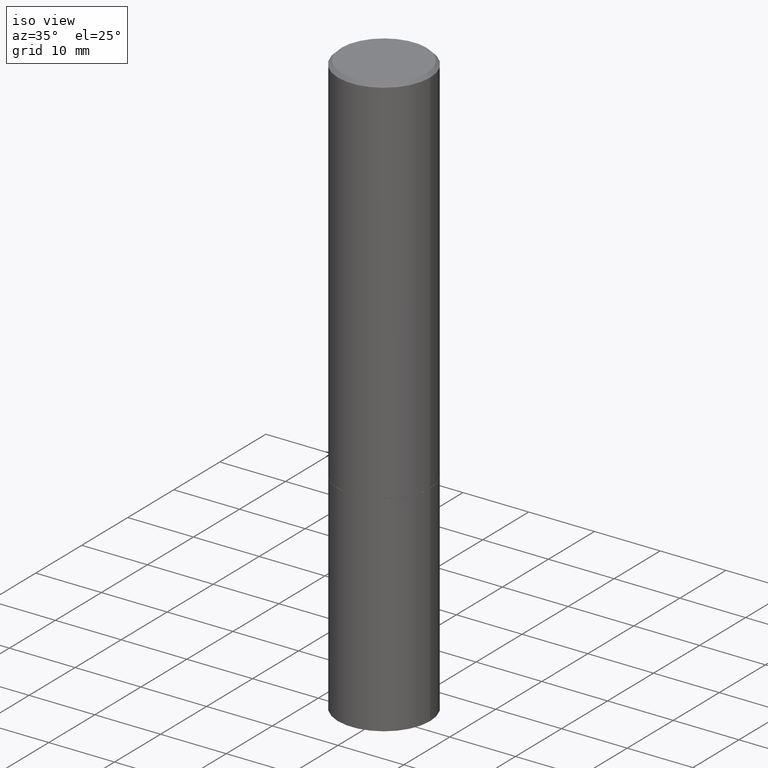
[diagram: clean part render]
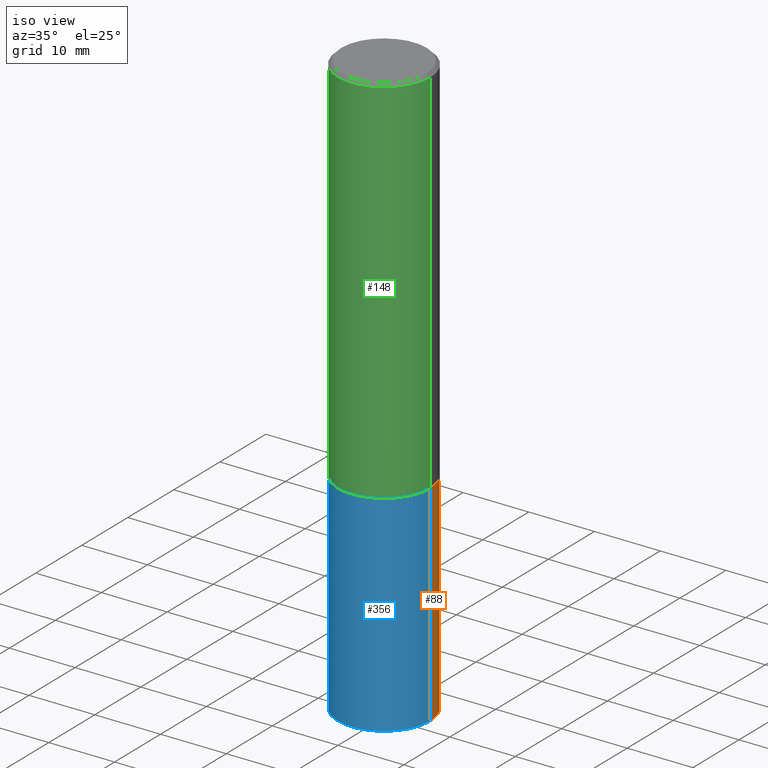
[diagram: same view with three faces highlighted in distinct colors, each labeled with its STEP entity id]
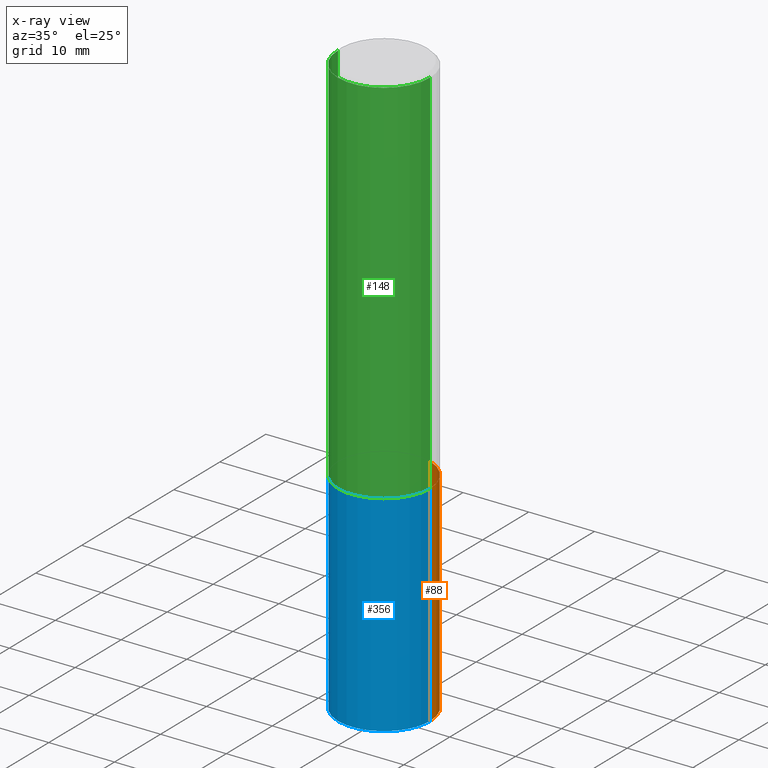
[diagram: x-ray of the same camera — body ghosted, the three highlighted faces saturated]
A machine part, iso view with three faces highlighted in distinct colors.
The next image is the same camera in x-ray (body ghosted, the three faces saturated) — at least one of them is partly hidden behind the body in this view.
Their STEP definitions:

[orange] entity #88 — the highlighted cylindrical surface (partial cylindrical patch) has radius 7.0002 mm, axis along (-0, 0, 1).
#35 = CARTESIAN_POINT ( 'NONE',  ( -0.2756000000000000116, -8.076261588080363510E-15, -2.244099999999999540 ) ) ;
#48 = CARTESIAN_POINT ( 'NONE',  ( -0.2756000000000000116, 1.958255779754836195E-15, -1.355658510874252007E-29 ) ) ;
#64 = DIRECTION ( 'NONE',  ( 1.000000000000000000, -6.982962677686267499E-15, 4.876176775795935793E-29 ) ) ;
#72 = LINE ( 'NONE', #187, #354 ) ;
#79 = CARTESIAN_POINT ( 'NONE',  ( 0.2756000000000000116, -9.759737786468235716E-15, -2.244099999999999540 ) ) ;
#88 = ADVANCED_FACE ( 'NONE', ( #126 ), #300, .T. ) ;
#97 = ORIENTED_EDGE ( 'NONE', *, *, #311, .F. ) ;
#119 = DIRECTION ( 'NONE',  ( -2.445468806185136877E-29, 3.491481338843145188E-15, 1.000000000000000000 ) ) ;
#120 = ORIENTED_EDGE ( 'NONE', *, *, #289, .T. ) ;
#123 = CARTESIAN_POINT ( 'NONE',  ( 8.568678149992099474E-29, -1.223380146317249786E-14, -3.503899999999999793 ) ) ;
#126 = FACE_OUTER_BOUND ( 'NONE', #178, .T. ) ;
#141 = VERTEX_POINT ( 'NONE', #234 ) ;
#147 = DIRECTION ( 'NONE',  ( -2.445468806185136597E-29, 3.491481338843145583E-15, 1.000000000000000000 ) ) ;
#150 = CARTESIAN_POINT ( 'NONE',  ( 5.487876547960063631E-29, -7.835233272497900762E-15, -2.244099999999999540 ) ) ;
#151 = DIRECTION ( 'NONE',  ( 1.000000000000000000, -6.982962677686265922E-15, 0.000000000000000000 ) ) ;
#164 = AXIS2_PLACEMENT_3D ( 'NONE', #150, #211, #278 ) ;
#165 = EDGE_CURVE ( 'NONE', #141, #361, #314, .T. ) ;
#166 = VERTEX_POINT ( 'NONE', #35 ) ;
#178 = EDGE_LOOP ( 'NONE', ( #201, #120, #97, #365 ) ) ;
#187 = CARTESIAN_POINT ( 'NONE',  ( 0.2756000000000000116, -1.924504513970335348E-15, 1.343874319409359987E-29 ) ) ;
#190 = CIRCLE ( 'NONE', #164, 0.2756000000000000116 ) ;
#195 = VERTEX_POINT ( 'NONE', #79 ) ;
#201 = ORIENTED_EDGE ( 'NONE', *, *, #165, .T. ) ;
#211 = DIRECTION ( 'NONE',  ( -2.445468806185136597E-29, 3.491481338843145583E-15, 1.000000000000000000 ) ) ;
#234 = CARTESIAN_POINT ( 'NONE',  ( 0.2756000000000000116, -1.415830597714283281E-14, -3.503899999999999793 ) ) ;
#243 = AXIS2_PLACEMENT_3D ( 'NONE', #320, #147, #64 ) ;
#249 = VECTOR ( 'NONE', #119, 39.37007874015748143 ) ;
#263 = EDGE_CURVE ( 'NONE', #141, #195, #72, .T. ) ;
#278 = DIRECTION ( 'NONE',  ( 1.000000000000000000, -6.982962677686265922E-15, 0.000000000000000000 ) ) ;
#283 = AXIS2_PLACEMENT_3D ( 'NONE', #123, #295, #151 ) ;
#289 = EDGE_CURVE ( 'NONE', #361, #166, #310, .T. ) ;
#295 = DIRECTION ( 'NONE',  ( -2.445468806185136597E-29, 3.491481338843145583E-15, 1.000000000000000000 ) ) ;
#300 = CYLINDRICAL_SURFACE ( 'NONE', #243, 0.2756000000000000116 ) ;
#301 = DIRECTION ( 'NONE',  ( -2.445468806185136877E-29, 3.491481338843145188E-15, 1.000000000000000000 ) ) ;
#310 = LINE ( 'NONE', #48, #249 ) ;
#311 = EDGE_CURVE ( 'NONE', #195, #166, #190, .T. ) ;
#314 = CIRCLE ( 'NONE', #283, 0.2756000000000000116 ) ;
#320 = CARTESIAN_POINT ( 'NONE',  ( 0.000000000000000000, 0.000000000000000000, 0.000000000000000000 ) ) ;
#351 = CARTESIAN_POINT ( 'NONE',  ( -0.2756000000000000116, -8.076261588080363510E-15, -3.503899999999999793 ) ) ;
#354 = VECTOR ( 'NONE', #301, 39.37007874015748143 ) ;
#361 = VERTEX_POINT ( 'NONE', #351 ) ;
#365 = ORIENTED_EDGE ( 'NONE', *, *, #263, .F. ) ;

[blue] entity #356 — the highlighted cylindrical surface (partial cylindrical patch) has radius 7.0002 mm, axis along (-0, 0, 1).
#16 = DIRECTION ( 'NONE',  ( -2.445468806185136597E-29, 3.491481338843145583E-15, 1.000000000000000000 ) ) ;
#31 = ORIENTED_EDGE ( 'NONE', *, *, #289, .F. ) ;
#35 = CARTESIAN_POINT ( 'NONE',  ( -0.2756000000000000116, -8.076261588080363510E-15, -2.244099999999999540 ) ) ;
#36 = AXIS2_PLACEMENT_3D ( 'NONE', #288, #144, #214 ) ;
#39 = FACE_OUTER_BOUND ( 'NONE', #261, .T. ) ;
#40 = CIRCLE ( 'NONE', #36, 0.2756000000000000116 ) ;
#44 = DIRECTION ( 'NONE',  ( 1.000000000000000000, -6.982962677686265922E-15, 0.000000000000000000 ) ) ;
#48 = CARTESIAN_POINT ( 'NONE',  ( -0.2756000000000000116, 1.958255779754836195E-15, -1.355658510874252007E-29 ) ) ;
#62 = AXIS2_PLACEMENT_3D ( 'NONE', #69, #328, #306 ) ;
#69 = CARTESIAN_POINT ( 'NONE',  ( 0.000000000000000000, 0.000000000000000000, 0.000000000000000000 ) ) ;
#72 = LINE ( 'NONE', #187, #354 ) ;
#79 = CARTESIAN_POINT ( 'NONE',  ( 0.2756000000000000116, -9.759737786468235716E-15, -2.244099999999999540 ) ) ;
#92 = ORIENTED_EDGE ( 'NONE', *, *, #305, .T. ) ;
#119 = DIRECTION ( 'NONE',  ( -2.445468806185136877E-29, 3.491481338843145188E-15, 1.000000000000000000 ) ) ;
#141 = VERTEX_POINT ( 'NONE', #234 ) ;
#143 = ORIENTED_EDGE ( 'NONE', *, *, #279, .F. ) ;
#144 = DIRECTION ( 'NONE',  ( -2.445468806185136597E-29, 3.491481338843145583E-15, 1.000000000000000000 ) ) ;
#159 = CYLINDRICAL_SURFACE ( 'NONE', #62, 0.2756000000000000116 ) ;
#166 = VERTEX_POINT ( 'NONE', #35 ) ;
#187 = CARTESIAN_POINT ( 'NONE',  ( 0.2756000000000000116, -1.924504513970335348E-15, 1.343874319409359987E-29 ) ) ;
#194 = CARTESIAN_POINT ( 'NONE',  ( 5.487876547960063631E-29, -7.835233272497900762E-15, -2.244099999999999540 ) ) ;
#195 = VERTEX_POINT ( 'NONE', #79 ) ;
#214 = DIRECTION ( 'NONE',  ( 1.000000000000000000, -6.982962677686265922E-15, 0.000000000000000000 ) ) ;
#234 = CARTESIAN_POINT ( 'NONE',  ( 0.2756000000000000116, -1.415830597714283281E-14, -3.503899999999999793 ) ) ;
#249 = VECTOR ( 'NONE', #119, 39.37007874015748143 ) ;
#252 = ORIENTED_EDGE ( 'NONE', *, *, #263, .T. ) ;
#261 = EDGE_LOOP ( 'NONE', ( #31, #92, #252, #143 ) ) ;
#263 = EDGE_CURVE ( 'NONE', #141, #195, #72, .T. ) ;
#279 = EDGE_CURVE ( 'NONE', #166, #195, #297, .T. ) ;
#288 = CARTESIAN_POINT ( 'NONE',  ( 8.568678149992099474E-29, -1.223380146317249786E-14, -3.503899999999999793 ) ) ;
#289 = EDGE_CURVE ( 'NONE', #361, #166, #310, .T. ) ;
#297 = CIRCLE ( 'NONE', #342, 0.2756000000000000116 ) ;
#301 = DIRECTION ( 'NONE',  ( -2.445468806185136877E-29, 3.491481338843145188E-15, 1.000000000000000000 ) ) ;
#305 = EDGE_CURVE ( 'NONE', #361, #141, #40, .T. ) ;
#306 = DIRECTION ( 'NONE',  ( 1.000000000000000000, -6.982962677686267499E-15, 4.876176775795935793E-29 ) ) ;
#310 = LINE ( 'NONE', #48, #249 ) ;
#328 = DIRECTION ( 'NONE',  ( -2.445468806185136597E-29, 3.491481338843145583E-15, 1.000000000000000000 ) ) ;
#342 = AXIS2_PLACEMENT_3D ( 'NONE', #194, #16, #44 ) ;
#351 = CARTESIAN_POINT ( 'NONE',  ( -0.2756000000000000116, -8.076261588080363510E-15, -3.503899999999999793 ) ) ;
#354 = VECTOR ( 'NONE', #301, 39.37007874015748143 ) ;
#356 = ADVANCED_FACE ( 'NONE', ( #39 ), #159, .T. ) ;
#361 = VERTEX_POINT ( 'NONE', #351 ) ;

[green] entity #148 — the highlighted cylindrical surface (partial cylindrical patch) has radius 7.0002 mm, axis along (-0, 0, 1).
#1 = AXIS2_PLACEMENT_3D ( 'NONE', #161, #223, #277 ) ;
#11 = DIRECTION ( 'NONE',  ( -2.445468806185136597E-29, 3.491481338843145583E-15, 1.000000000000000000 ) ) ;
#49 = VERTEX_POINT ( 'NONE', #345 ) ;
#55 = VECTOR ( 'NONE', #350, 39.37007874015748143 ) ;
#65 = DIRECTION ( 'NONE',  ( -2.445468806185136597E-29, 3.491481338843145583E-15, 1.000000000000000000 ) ) ;
#66 = FACE_OUTER_BOUND ( 'NONE', #154, .T. ) ;
#91 = CIRCLE ( 'NONE', #1, 0.2756000000000000671 ) ;
#94 = CYLINDRICAL_SURFACE ( 'NONE', #95, 0.2755999999999999006 ) ;
#95 = AXIS2_PLACEMENT_3D ( 'NONE', #181, #65, #344 ) ;
#103 = CARTESIAN_POINT ( 'NONE',  ( 0.2756000000000000671, -9.756246305129392709E-15, -2.243099999999999206 ) ) ;
#124 = CIRCLE ( 'NONE', #363, 0.2755999999999997896 ) ;
#125 = LINE ( 'NONE', #355, #179 ) ;
#148 = ADVANCED_FACE ( 'NONE', ( #66 ), #94, .T. ) ;
#154 = EDGE_LOOP ( 'NONE', ( #349, #228, #186, #290 ) ) ;
#160 = LINE ( 'NONE', #242, #55 ) ;
#161 = CARTESIAN_POINT ( 'NONE',  ( 5.485431079153878028E-29, -7.831741791159057755E-15, -2.243099999999999206 ) ) ;
#179 = VECTOR ( 'NONE', #247, 39.37007874015748143 ) ;
#181 = CARTESIAN_POINT ( 'NONE',  ( 0.000000000000000000, 0.000000000000000000, 0.000000000000000000 ) ) ;
#186 = ORIENTED_EDGE ( 'NONE', *, *, #192, .T. ) ;
#192 = EDGE_CURVE ( 'NONE', #335, #49, #125, .T. ) ;
#221 = CARTESIAN_POINT ( 'NONE',  ( 4.890937612370288047E-31, -6.982962677686311331E-17, -0.02000000000000005940 ) ) ;
#222 = EDGE_CURVE ( 'NONE', #233, #262, #160, .T. ) ;
#223 = DIRECTION ( 'NONE',  ( -2.445468806185136597E-29, 3.491481338843145583E-15, 1.000000000000000000 ) ) ;
#228 = ORIENTED_EDGE ( 'NONE', *, *, #269, .T. ) ;
#233 = VERTEX_POINT ( 'NONE', #352 ) ;
#242 = CARTESIAN_POINT ( 'NONE',  ( -0.2755999999999999006, 1.958255779754835406E-15, -1.355658510874251446E-29 ) ) ;
#246 = EDGE_CURVE ( 'NONE', #262, #49, #124, .T. ) ;
#247 = DIRECTION ( 'NONE',  ( -2.445468806185136877E-29, 3.491481338843145188E-15, 1.000000000000000000 ) ) ;
#262 = VERTEX_POINT ( 'NONE', #304 ) ;
#269 = EDGE_CURVE ( 'NONE', #233, #335, #91, .T. ) ;
#277 = DIRECTION ( 'NONE',  ( 1.000000000000000000, -6.982962677686264344E-15, 0.000000000000000000 ) ) ;
#290 = ORIENTED_EDGE ( 'NONE', *, *, #246, .F. ) ;
#304 = CARTESIAN_POINT ( 'NONE',  ( -0.2755999999999997896, 1.854674887193470472E-15, -0.02000000000000005940 ) ) ;
#331 = DIRECTION ( 'NONE',  ( 1.000000000000000000, -6.982962677686267499E-15, 0.000000000000000000 ) ) ;
#335 = VERTEX_POINT ( 'NONE', #103 ) ;
#344 = DIRECTION ( 'NONE',  ( 1.000000000000000000, -6.982962677686267499E-15, 4.876176775795935793E-29 ) ) ;
#345 = CARTESIAN_POINT ( 'NONE',  ( 0.2755999999999997896, -1.960582874962695828E-15, -0.02000000000000005940 ) ) ;
#349 = ORIENTED_EDGE ( 'NONE', *, *, #222, .F. ) ;
#350 = DIRECTION ( 'NONE',  ( -2.445468806185136877E-29, 3.491481338843145188E-15, 1.000000000000000000 ) ) ;
#352 = CARTESIAN_POINT ( 'NONE',  ( -0.2756000000000000671, -1.992529929213121965E-15, -2.243099999999999206 ) ) ;
#355 = CARTESIAN_POINT ( 'NONE',  ( 0.2755999999999999006, -1.924504513970334560E-15, 1.343874319409359427E-29 ) ) ;
#363 = AXIS2_PLACEMENT_3D ( 'NONE', #221, #11, #331 ) ;